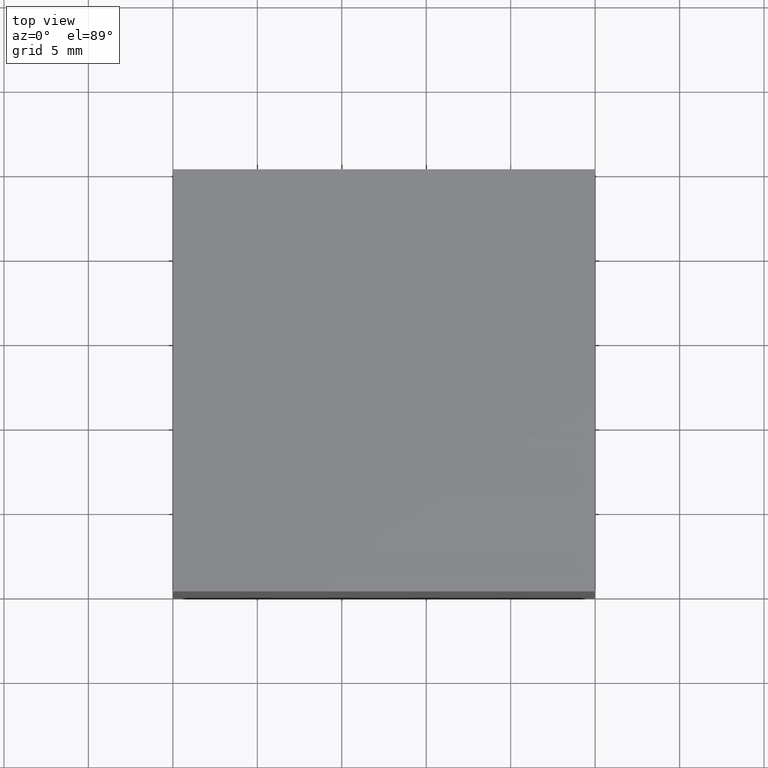
[diagram: clean part render]
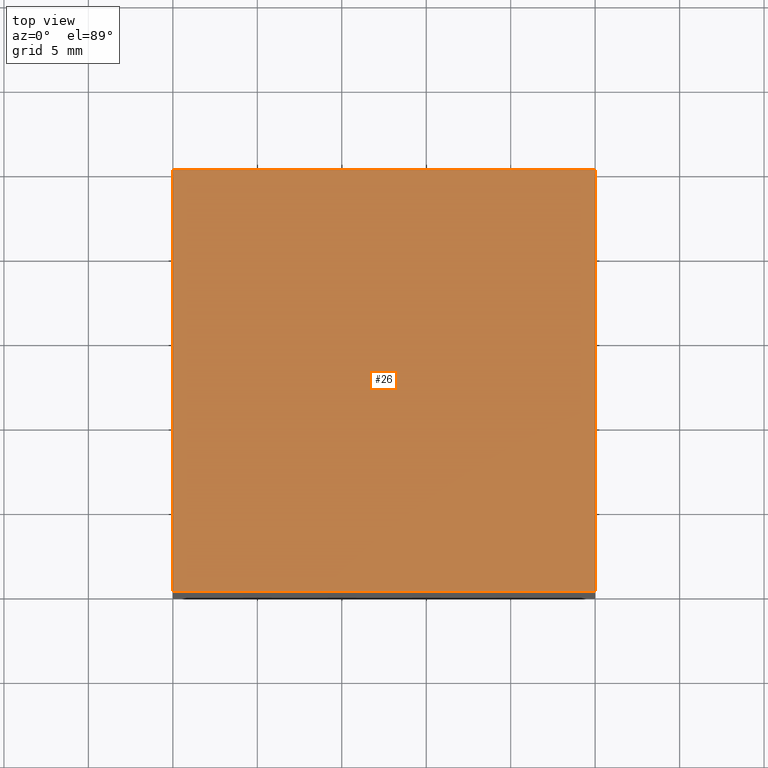
[diagram: same view with one face highlighted and labeled with its STEP entity id]
A machine part, top view. The second image highlights one B-rep face of the part: STEP entity #26.
In plain terms, the highlighted planar face has unit normal (-0, 0, 1).
Its self-contained STEP definition (entity closure, byte-faithful):
#2 = EDGE_CURVE ( 'NONE', #12, #44, #212, .T. ) ;
#4 = DIRECTION ( 'NONE',  ( -0.0000000000000000000, 0.0000000000000000000, 1.000000000000000000 ) ) ;
#12 = VERTEX_POINT ( 'NONE', #295 ) ;
#15 = DIRECTION ( 'NONE',  ( -1.000000000000000000, -0.0000000000000000000, -0.0000000000000000000 ) ) ;
#24 = DIRECTION ( 'NONE',  ( -1.000000000000000000, -0.0000000000000000000, -0.0000000000000000000 ) ) ;
#26 = ADVANCED_FACE ( 'NONE', ( #65 ), #144, .T. ) ;
#34 = EDGE_CURVE ( 'NONE', #90, #44, #237, .T. ) ;
#44 = VERTEX_POINT ( 'NONE', #256 ) ;
#49 = ORIENTED_EDGE ( 'NONE', *, *, #182, .F. ) ;
#65 = FACE_OUTER_BOUND ( 'NONE', #119, .T. ) ;
#87 = DIRECTION ( 'NONE',  ( 1.000000000000000000, 0.0000000000000000000, 0.0000000000000000000 ) ) ;
#90 = VERTEX_POINT ( 'NONE', #148 ) ;
#95 = CARTESIAN_POINT ( 'NONE',  ( 0.0000000000000000000, 25.00000000000000000, 0.0000000000000000000 ) ) ;
#106 = DIRECTION ( 'NONE',  ( 0.0000000000000000000, -1.000000000000000000, 0.0000000000000000000 ) ) ;
#119 = EDGE_LOOP ( 'NONE', ( #139, #49, #224, #130 ) ) ;
#125 = CARTESIAN_POINT ( 'NONE',  ( -25.00000000000000000, 25.00000000000000000, 0.0000000000000000000 ) ) ;
#130 = ORIENTED_EDGE ( 'NONE', *, *, #2, .T. ) ;
#133 = CARTESIAN_POINT ( 'NONE',  ( -25.00000000000000000, 25.00000000000000000, 0.0000000000000000000 ) ) ;
#135 = VECTOR ( 'NONE', #106, 1000.000000000000000 ) ;
#136 = VECTOR ( 'NONE', #24, 1000.000000000000000 ) ;
#139 = ORIENTED_EDGE ( 'NONE', *, *, #34, .F. ) ;
#144 = PLANE ( 'NONE',  #147 ) ;
#145 = LINE ( 'NONE', #289, #136 ) ;
#147 = AXIS2_PLACEMENT_3D ( 'NONE', #133, #4, #87 ) ;
#148 = CARTESIAN_POINT ( 'NONE',  ( 0.0000000000000000000, 0.0000000000000000000, 0.0000000000000000000 ) ) ;
#158 = LINE ( 'NONE', #262, #135 ) ;
#166 = VERTEX_POINT ( 'NONE', #95 ) ;
#179 = CARTESIAN_POINT ( 'NONE',  ( -25.00000000000000000, 0.0000000000000000000, 0.0000000000000000000 ) ) ;
#182 = EDGE_CURVE ( 'NONE', #166, #90, #158, .T. ) ;
#196 = VECTOR ( 'NONE', #15, 1000.000000000000000 ) ;
#207 = VECTOR ( 'NONE', #294, 1000.000000000000000 ) ;
#212 = LINE ( 'NONE', #125, #207 ) ;
#219 = EDGE_CURVE ( 'NONE', #166, #12, #145, .T. ) ;
#224 = ORIENTED_EDGE ( 'NONE', *, *, #219, .T. ) ;
#237 = LINE ( 'NONE', #179, #196 ) ;
#256 = CARTESIAN_POINT ( 'NONE',  ( -25.00000000000000000, 0.0000000000000000000, 0.0000000000000000000 ) ) ;
#262 = CARTESIAN_POINT ( 'NONE',  ( 0.0000000000000000000, 25.00000000000000000, 0.0000000000000000000 ) ) ;
#289 = CARTESIAN_POINT ( 'NONE',  ( -25.00000000000000000, 25.00000000000000000, 0.0000000000000000000 ) ) ;
#294 = DIRECTION ( 'NONE',  ( 0.0000000000000000000, -1.000000000000000000, 0.0000000000000000000 ) ) ;
#295 = CARTESIAN_POINT ( 'NONE',  ( -25.00000000000000000, 25.00000000000000000, 0.0000000000000000000 ) ) ;